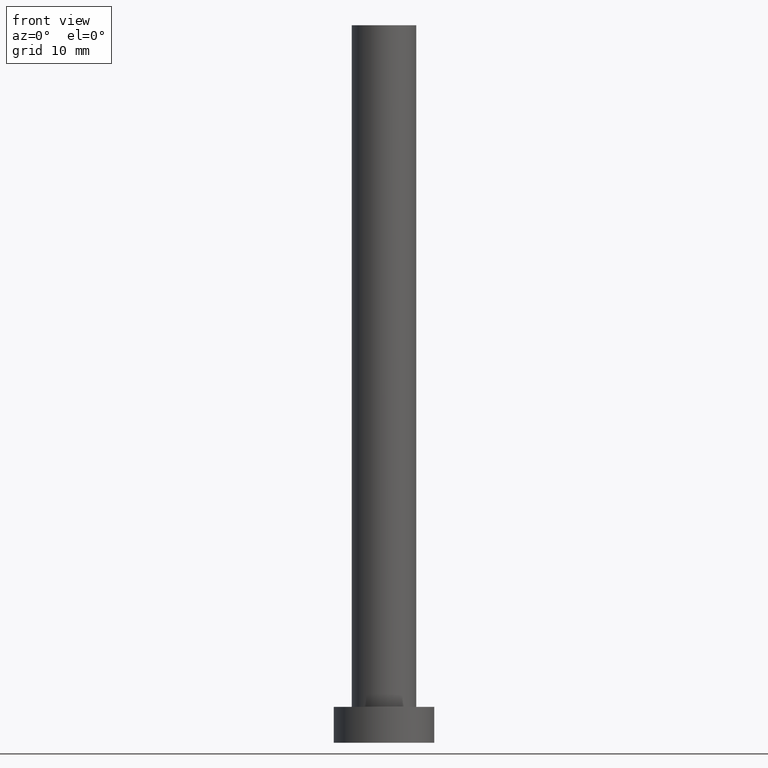
[diagram: clean part render]
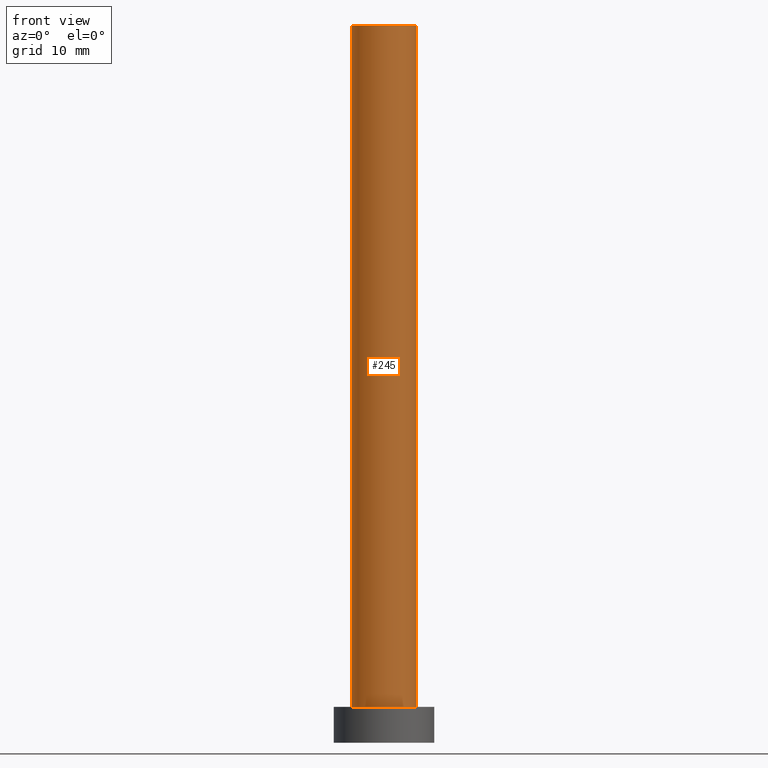
[diagram: same view with one face highlighted and labeled with its STEP entity id]
A machine part, front view. The second image highlights one B-rep face of the part: STEP entity #245.
In plain terms, the highlighted cylindrical surface (edge-blend (fillet) strip) has radius 4.5 mm, axis along (-0, -0, -1).
Its self-contained STEP definition (entity closure, byte-faithful):
#4 = CARTESIAN_POINT ( 'NONE',  ( 4.500000000000000888, 5.510910596163089556E-16, 100.0000000000000000 ) ) ;
#33 = DIRECTION ( 'NONE',  ( 0.000000000000000000, 0.000000000000000000, 1.000000000000000000 ) ) ;
#45 = VERTEX_POINT ( 'NONE', #91 ) ;
#50 = CARTESIAN_POINT ( 'NONE',  ( 0.000000000000000000, 0.000000000000000000, 100.0000000000000000 ) ) ;
#80 = VECTOR ( 'NONE', #142, 1000.000000000000000 ) ;
#81 = VERTEX_POINT ( 'NONE', #4 ) ;
#84 = AXIS2_PLACEMENT_3D ( 'NONE', #253, #33, #200 ) ;
#90 = FACE_OUTER_BOUND ( 'NONE', #169, .T. ) ;
#91 = CARTESIAN_POINT ( 'NONE',  ( -4.500000000000000888, 0.000000000000000000, 5.000000000000000000 ) ) ;
#92 = DIRECTION ( 'NONE',  ( -0.000000000000000000, -0.000000000000000000, -1.000000000000000000 ) ) ;
#95 = EDGE_CURVE ( 'NONE', #81, #188, #243, .T. ) ;
#105 = LINE ( 'NONE', #214, #115 ) ;
#106 = ORIENTED_EDGE ( 'NONE', *, *, #211, .T. ) ;
#115 = VECTOR ( 'NONE', #201, 1000.000000000000000 ) ;
#129 = EDGE_CURVE ( 'NONE', #171, #45, #105, .T. ) ;
#140 = CIRCLE ( 'NONE', #167, 4.500000000000000888 ) ;
#142 = DIRECTION ( 'NONE',  ( -0.000000000000000000, -0.000000000000000000, -1.000000000000000000 ) ) ;
#153 = DIRECTION ( 'NONE',  ( 0.000000000000000000, 0.000000000000000000, 1.000000000000000000 ) ) ;
#165 = AXIS2_PLACEMENT_3D ( 'NONE', #50, #92, #183 ) ;
#166 = ORIENTED_EDGE ( 'NONE', *, *, #95, .F. ) ;
#167 = AXIS2_PLACEMENT_3D ( 'NONE', #170, #153, #248 ) ;
#169 = EDGE_LOOP ( 'NONE', ( #166, #247, #215, #106 ) ) ;
#170 = CARTESIAN_POINT ( 'NONE',  ( 0.000000000000000000, 0.000000000000000000, 5.000000000000000000 ) ) ;
#171 = VERTEX_POINT ( 'NONE', #176 ) ;
#176 = CARTESIAN_POINT ( 'NONE',  ( -4.500000000000000888, 0.000000000000000000, 100.0000000000000000 ) ) ;
#183 = DIRECTION ( 'NONE',  ( -1.000000000000000000, 0.000000000000000000, 0.000000000000000000 ) ) ;
#188 = VERTEX_POINT ( 'NONE', #196 ) ;
#196 = CARTESIAN_POINT ( 'NONE',  ( 4.500000000000000888, 5.510910596163089556E-16, 5.000000000000000000 ) ) ;
#200 = DIRECTION ( 'NONE',  ( 1.000000000000000000, 0.000000000000000000, 0.000000000000000000 ) ) ;
#201 = DIRECTION ( 'NONE',  ( -0.000000000000000000, -0.000000000000000000, -1.000000000000000000 ) ) ;
#205 = CIRCLE ( 'NONE', #84, 4.500000000000000888 ) ;
#211 = EDGE_CURVE ( 'NONE', #45, #188, #140, .T. ) ;
#214 = CARTESIAN_POINT ( 'NONE',  ( -4.500000000000000888, 0.000000000000000000, 100.0000000000000000 ) ) ;
#215 = ORIENTED_EDGE ( 'NONE', *, *, #129, .T. ) ;
#229 = EDGE_CURVE ( 'NONE', #171, #81, #205, .T. ) ;
#234 = CYLINDRICAL_SURFACE ( 'NONE', #165, 4.500000000000000888 ) ;
#241 = CARTESIAN_POINT ( 'NONE',  ( 4.500000000000000888, 5.510910596163089556E-16, 100.0000000000000000 ) ) ;
#243 = LINE ( 'NONE', #241, #80 ) ;
#245 = ADVANCED_FACE ( 'NONE', ( #90 ), #234, .T. ) ;
#247 = ORIENTED_EDGE ( 'NONE', *, *, #229, .F. ) ;
#248 = DIRECTION ( 'NONE',  ( 1.000000000000000000, 0.000000000000000000, 0.000000000000000000 ) ) ;
#253 = CARTESIAN_POINT ( 'NONE',  ( 0.000000000000000000, 0.000000000000000000, 100.0000000000000000 ) ) ;